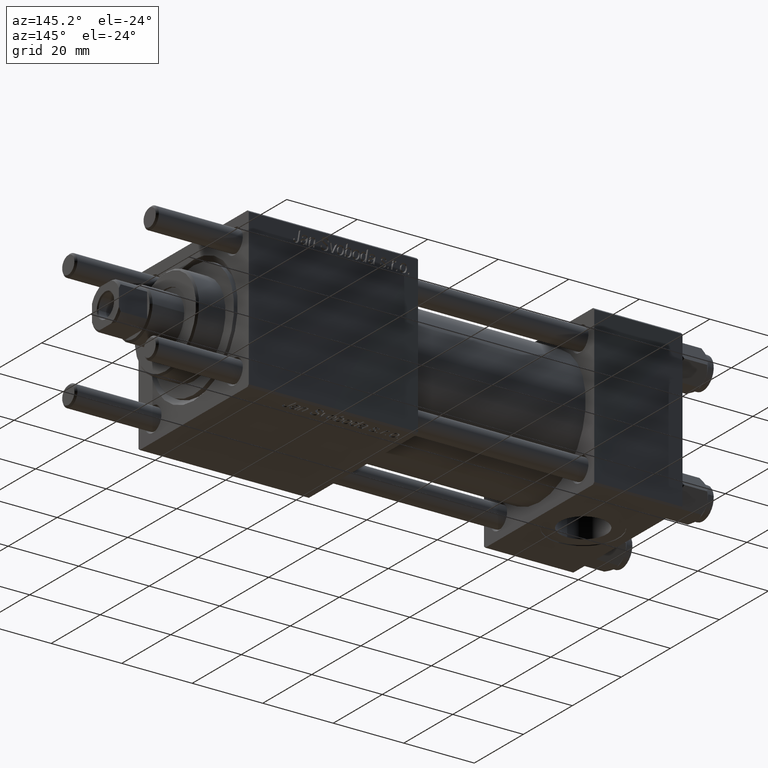
[diagram: clean part render]
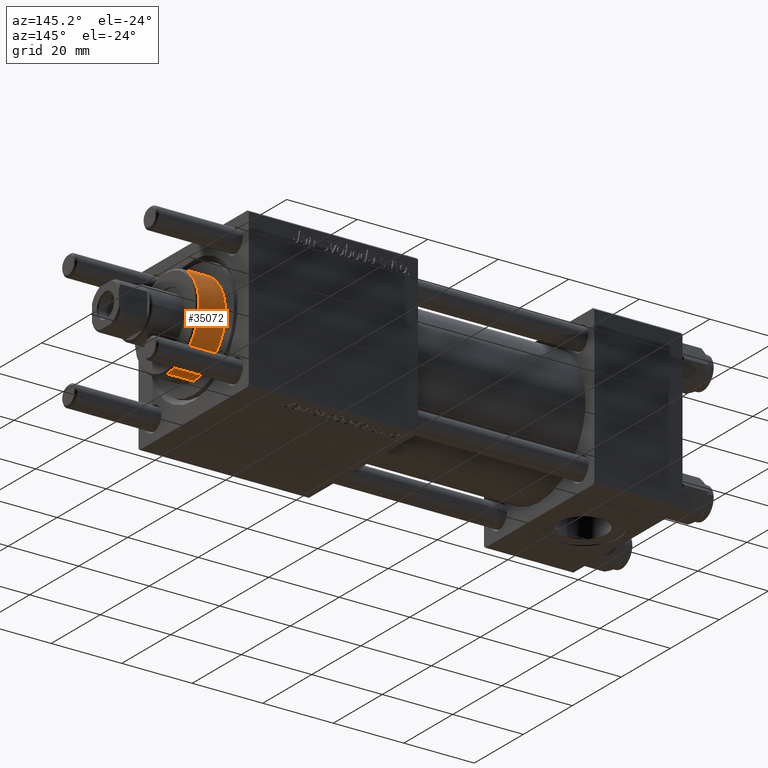
[diagram: same view with one face highlighted and labeled with its STEP entity id]
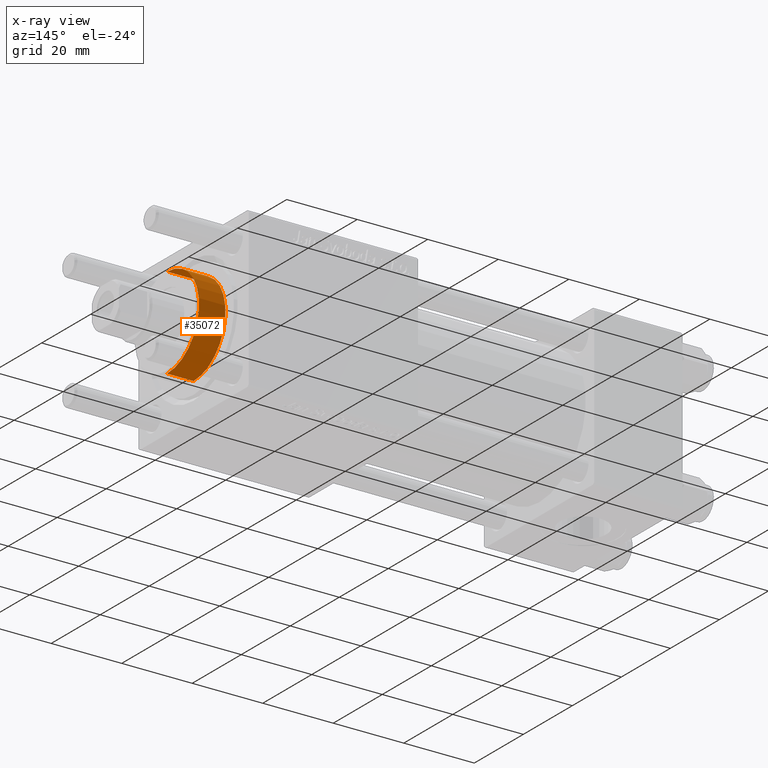
[diagram: x-ray of the same camera — body ghosted, the highlighted face saturated]
A machine part, auxiliary view. The second image highlights one B-rep face of the part: STEP entity #35072.
The next image is the same camera in x-ray: the body ghosted, the highlighted face saturated — about 0% of this face is hidden behind the body in this view.
In plain terms, the highlighted cylindrical surface (partial cylindrical patch) has radius 13 mm, axis along (-1, -0, 0).
Its self-contained STEP definition (entity closure, byte-faithful):
#2360 = DIRECTION ( 'NONE',  ( 0.000000000000000000, 0.000000000000000000, 1.000000000000000000 ) ) ;
#4333 = ORIENTED_EDGE ( 'NONE', *, *, #12818, .T. ) ;
#4423 = CIRCLE ( 'NONE', #20959, 13.00000000000000178 ) ;
#6963 = AXIS2_PLACEMENT_3D ( 'NONE', #25951, #43444, #33230 ) ;
#8290 = DIRECTION ( 'NONE',  ( -0.000000000000000000, -0.000000000000000000, -1.000000000000000000 ) ) ;
#9921 = EDGE_LOOP ( 'NONE', ( #4333, #15168, #27500, #44770 ) ) ;
#12818 = EDGE_CURVE ( 'NONE', #22173, #47248, #28963, .T. ) ;
#14571 = CARTESIAN_POINT ( 'NONE',  ( -13.00000000000000178, 0.000000000000000000, 28.69999999999999929 ) ) ;
#15168 = ORIENTED_EDGE ( 'NONE', *, *, #18934, .T. ) ;
#15940 = DIRECTION ( 'NONE',  ( -0.000000000000000000, -0.000000000000000000, -1.000000000000000000 ) ) ;
#15941 = DIRECTION ( 'NONE',  ( -0.000000000000000000, -0.000000000000000000, -1.000000000000000000 ) ) ;
#16157 = CARTESIAN_POINT ( 'NONE',  ( -13.00000000000000178, 0.000000000000000000, 36.20000000000000995 ) ) ;
#18934 = EDGE_CURVE ( 'NONE', #47248, #35651, #30113, .T. ) ;
#19875 = DIRECTION ( 'NONE',  ( 1.000000000000000000, 0.000000000000000000, 0.000000000000000000 ) ) ;
#20959 = AXIS2_PLACEMENT_3D ( 'NONE', #25590, #2360, #19875 ) ;
#22173 = VERTEX_POINT ( 'NONE', #16157 ) ;
#23948 = AXIS2_PLACEMENT_3D ( 'NONE', #28004, #15940, #55262 ) ;
#23982 = LINE ( 'NONE', #46356, #50705 ) ;
#25087 = EDGE_CURVE ( 'NONE', #35651, #27856, #4423, .T. ) ;
#25590 = CARTESIAN_POINT ( 'NONE',  ( 0.000000000000000000, 0.000000000000000000, 28.69999999999999929 ) ) ;
#25951 = CARTESIAN_POINT ( 'NONE',  ( 0.000000000000000000, 0.000000000000000000, 36.20000000000000995 ) ) ;
#27500 = ORIENTED_EDGE ( 'NONE', *, *, #25087, .T. ) ;
#27856 = VERTEX_POINT ( 'NONE', #14571 ) ;
#28004 = CARTESIAN_POINT ( 'NONE',  ( 0.000000000000000000, 0.000000000000000000, 36.69999999999999574 ) ) ;
#28855 = FACE_OUTER_BOUND ( 'NONE', #9921, .T. ) ;
#28963 = CIRCLE ( 'NONE', #6963, 13.00000000000000178 ) ;
#30113 = LINE ( 'NONE', #47612, #35553 ) ;
#33230 = DIRECTION ( 'NONE',  ( 1.000000000000000000, 0.000000000000000000, 0.000000000000000000 ) ) ;
#35072 = ADVANCED_FACE ( 'NONE', ( #28855 ), #37733, .T. ) ;
#35553 = VECTOR ( 'NONE', #8290, 1000.000000000000000 ) ;
#35651 = VERTEX_POINT ( 'NONE', #54405 ) ;
#37733 = CYLINDRICAL_SURFACE ( 'NONE', #23948, 13.00000000000000178 ) ;
#43444 = DIRECTION ( 'NONE',  ( 0.000000000000000000, 0.000000000000000000, -1.000000000000000000 ) ) ;
#43766 = EDGE_CURVE ( 'NONE', #22173, #27856, #23982, .T. ) ;
#44401 = CARTESIAN_POINT ( 'NONE',  ( 13.00000000000000178, 1.592040838891559293E-15, 36.20000000000000995 ) ) ;
#44770 = ORIENTED_EDGE ( 'NONE', *, *, #43766, .F. ) ;
#46356 = CARTESIAN_POINT ( 'NONE',  ( -13.00000000000000178, 0.000000000000000000, 36.69999999999999574 ) ) ;
#47248 = VERTEX_POINT ( 'NONE', #44401 ) ;
#47612 = CARTESIAN_POINT ( 'NONE',  ( 13.00000000000000178, 1.592040838891559293E-15, 36.69999999999999574 ) ) ;
#50705 = VECTOR ( 'NONE', #15941, 1000.000000000000000 ) ;
#54405 = CARTESIAN_POINT ( 'NONE',  ( 13.00000000000000178, 1.592040838891559293E-15, 28.69999999999999929 ) ) ;
#55262 = DIRECTION ( 'NONE',  ( -1.000000000000000000, 0.000000000000000000, 0.000000000000000000 ) ) ;